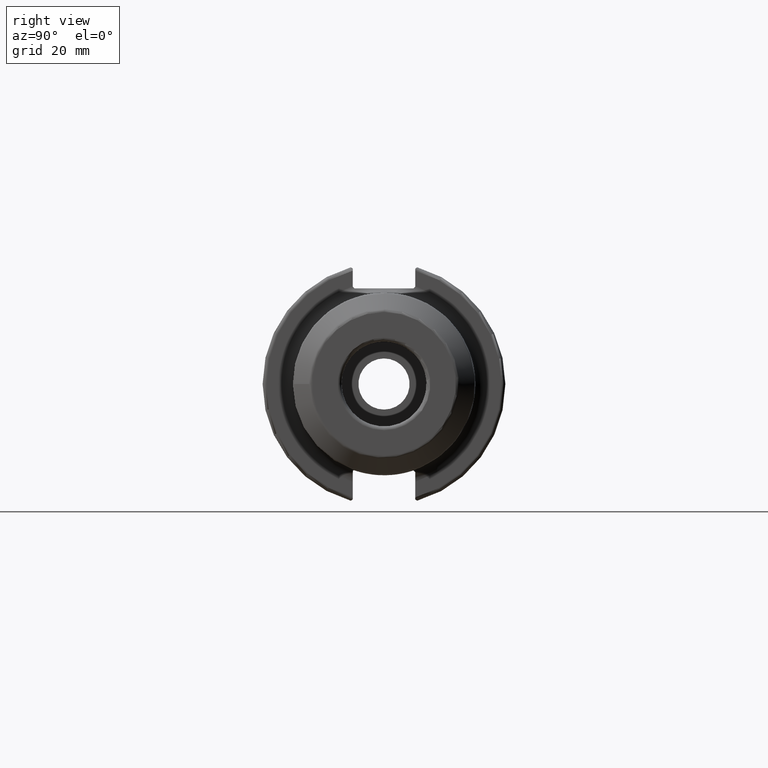
[diagram: clean part render]
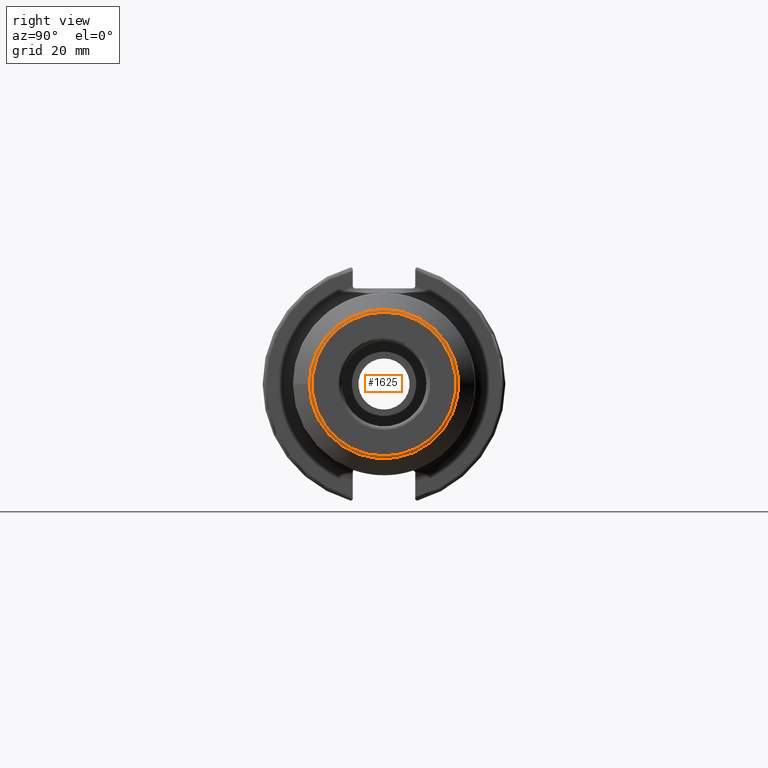
[diagram: same view with one face highlighted and labeled with its STEP entity id]
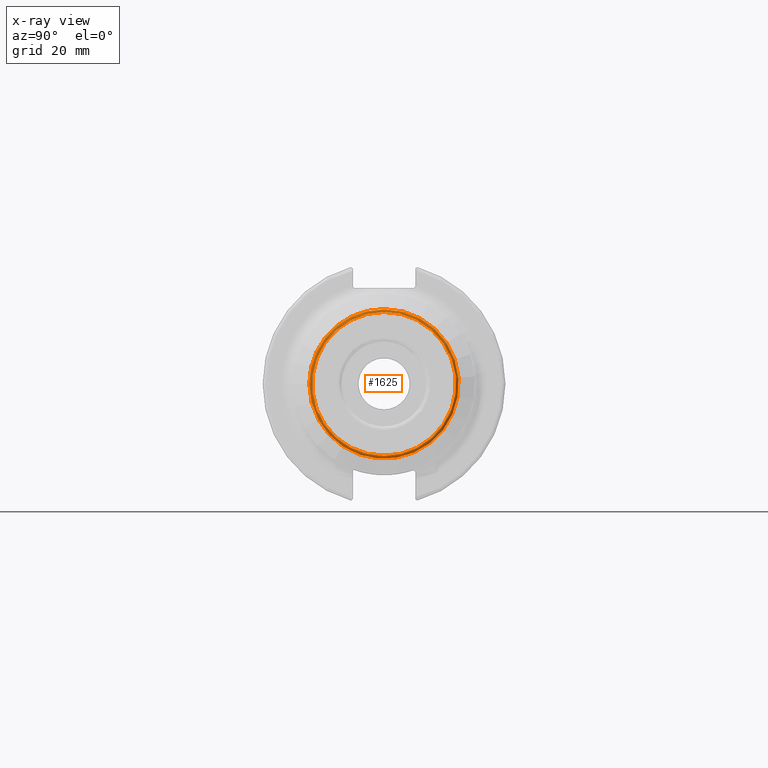
[diagram: x-ray of the same camera — body ghosted, the highlighted face saturated]
A machine part, right view. The second image highlights one B-rep face of the part: STEP entity #1625.
The next image is the same camera in x-ray: the body ghosted, the highlighted face saturated — about 0% of this face is hidden behind the body in this view.
In plain terms, the highlighted toroidal blend (fillet) surface has major radius 18.8358 mm and minor (blend) radius 1 mm.
Its self-contained STEP definition (entity closure, byte-faithful):
#32=TOROIDAL_SURFACE('',#1756,18.8357864376269,1.);
#160=FACE_OUTER_BOUND('',#257,.T.);
#257=EDGE_LOOP('',(#1150,#1151,#1152,#1153,#1154));
#364=CIRCLE('',#1753,18.8357864376269);
#366=CIRCLE('',#1757,1.);
#367=CIRCLE('',#1758,19.5428932188134);
#368=CIRCLE('',#1759,19.5428932188134);
#690=VERTEX_POINT('',#2636);
#692=VERTEX_POINT('',#2643);
#693=VERTEX_POINT('',#2645);
#869=EDGE_CURVE('',#690,#690,#364,.T.);
#872=EDGE_CURVE('',#690,#692,#366,.T.);
#873=EDGE_CURVE('',#692,#693,#367,.T.);
#874=EDGE_CURVE('',#693,#692,#368,.T.);
#1150=ORIENTED_EDGE('',*,*,#869,.T.);
#1151=ORIENTED_EDGE('',*,*,#872,.T.);
#1152=ORIENTED_EDGE('',*,*,#873,.T.);
#1153=ORIENTED_EDGE('',*,*,#874,.T.);
#1154=ORIENTED_EDGE('',*,*,#872,.F.);
#1625=ADVANCED_FACE('',(#160),#32,.T.);
#1753=AXIS2_PLACEMENT_3D('',#2637,#1982,#1983);
#1756=AXIS2_PLACEMENT_3D('',#2642,#1989,#1990);
#1757=AXIS2_PLACEMENT_3D('',#2644,#1991,#1992);
#1758=AXIS2_PLACEMENT_3D('',#2646,#1993,#1994);
#1759=AXIS2_PLACEMENT_3D('',#2647,#1995,#1996);
#1982=DIRECTION('center_axis',(-1.,0.,0.));
#1983=DIRECTION('ref_axis',(0.,-1.,1.83697019872103E-16));
#1989=DIRECTION('center_axis',(1.,0.,0.));
#1990=DIRECTION('ref_axis',(0.,0.,-1.));
#1991=DIRECTION('center_axis',(0.,-1.,-1.22464679914735E-16));
#1992=DIRECTION('ref_axis',(0.,-1.22464679914735E-16,1.));
#1993=DIRECTION('center_axis',(1.,0.,0.));
#1994=DIRECTION('ref_axis',(0.,-1.,3.06161699786838E-17));
#1995=DIRECTION('center_axis',(1.,0.,0.));
#1996=DIRECTION('ref_axis',(0.,-1.,3.06161699786838E-17));
#2636=CARTESIAN_POINT('',(101.6,-2.30671855702629E-15,18.8357864376269));
#2637=CARTESIAN_POINT('Origin',(101.6,0.,0.));
#2642=CARTESIAN_POINT('Origin',(100.6,0.,0.));
#2643=CARTESIAN_POINT('',(101.307106781187,-2.39331416264984E-15,19.5428932188134));
#2644=CARTESIAN_POINT('Origin',(100.6,-2.30671855702629E-15,18.8357864376269));
#2645=CARTESIAN_POINT('',(101.307106781187,-19.5428932188134,-2.39331416264984E-15));
#2646=CARTESIAN_POINT('Origin',(101.307106781187,0.,-2.9916427033123E-15));
#2647=CARTESIAN_POINT('Origin',(101.307106781187,0.,-2.9916427033123E-15));